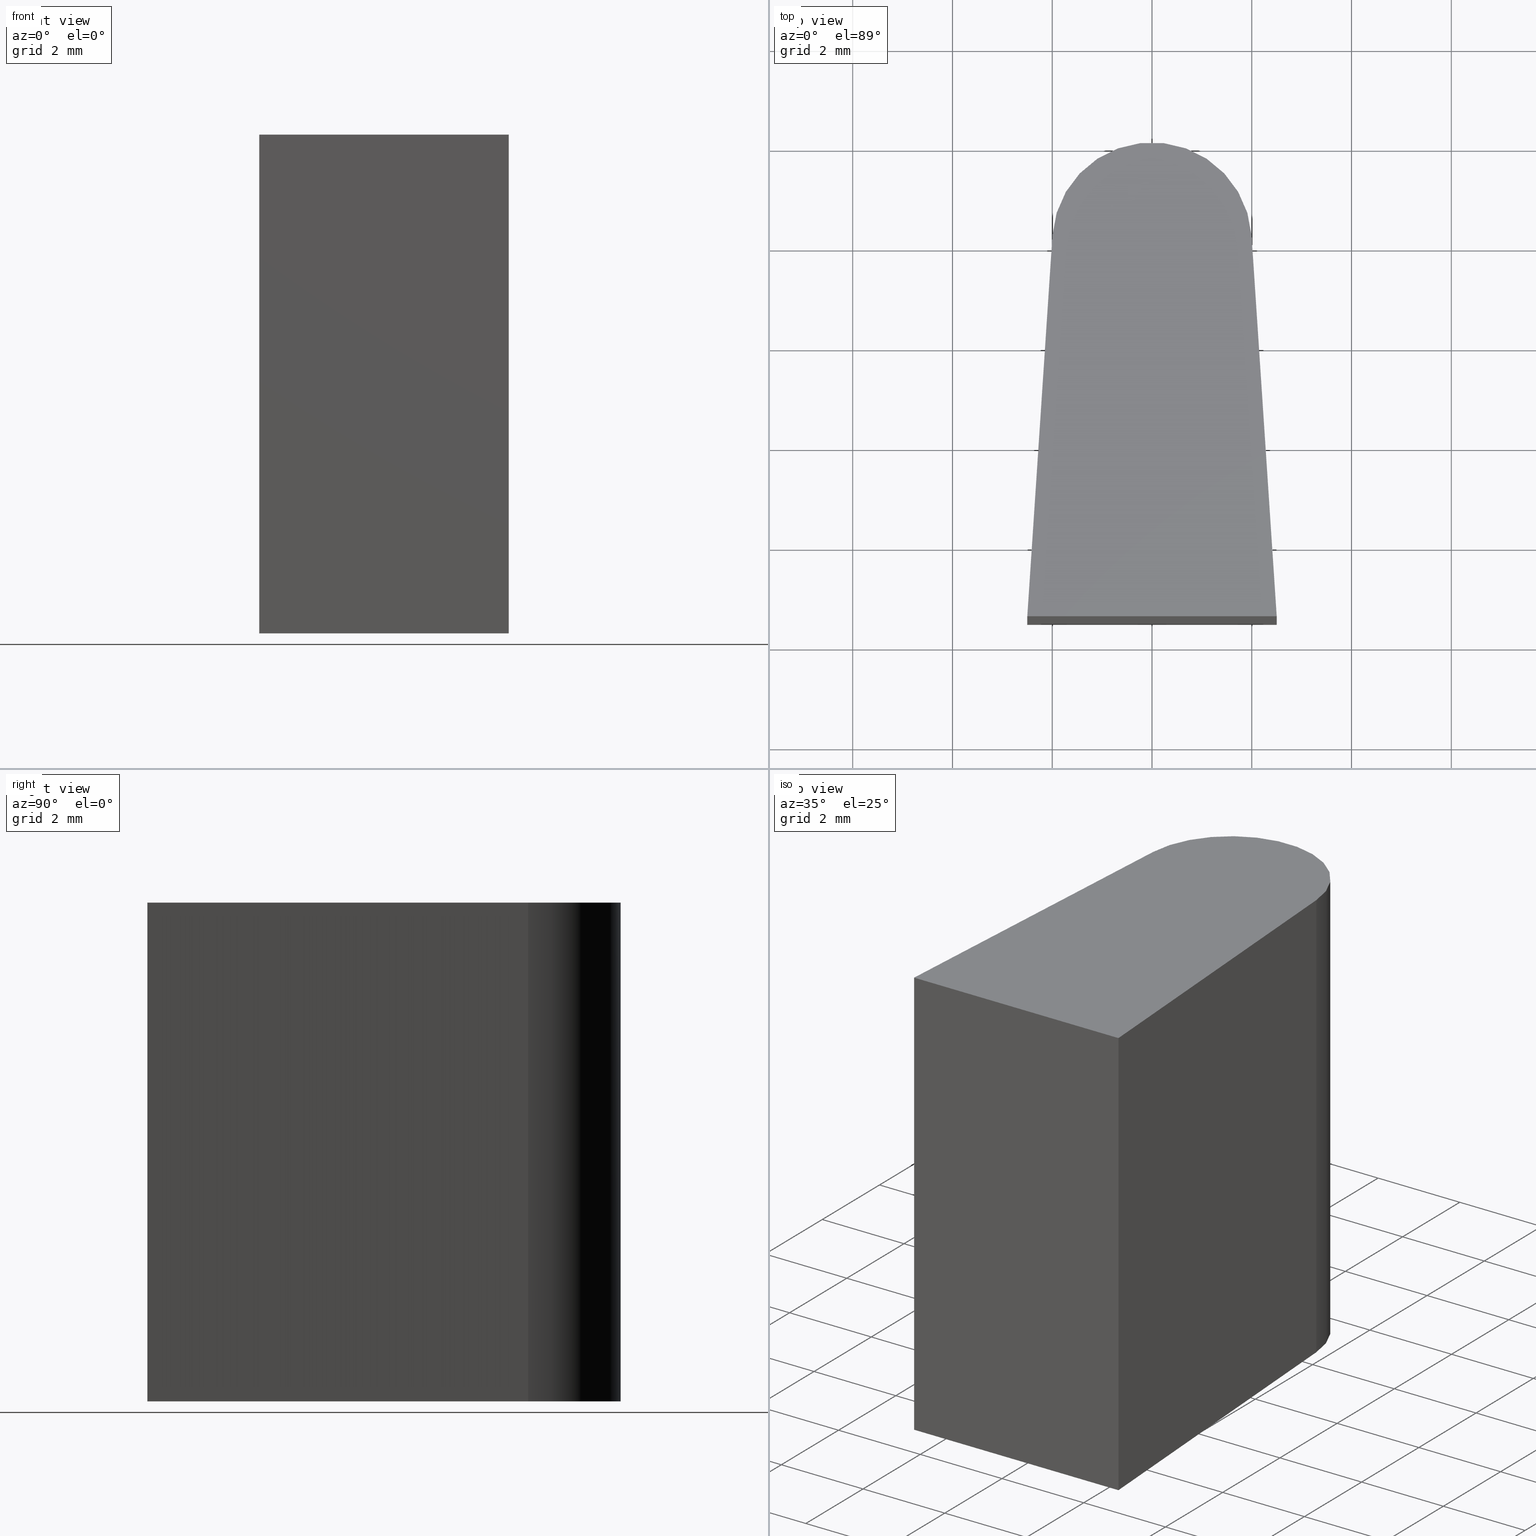
[diagram: canonical four-view strip — front | top / right | iso, engineering-drawing reading convention]
A machine part, canonical four-view strip (front | top / right | iso — engineering-drawing reading convention). The complete STEP part file that produces these views, byte-faithful:
ISO-10303-21;
HEADER;
/* Generated by software containing ST-Developer
 * from STEP Tools, Inc. (www.steptools.com) 
 */

FILE_DESCRIPTION(
/* description */ (''),
/* implementation_level */ '2;1');

FILE_NAME(
/* name */ 
'H:\\Eigene Dateien\\CAD Workspace Vault\\CAD\\E_3_Nocken\\E_3_01_Aufs
chwei\X\DFnocke\\01_Rund\\E_3_01_01_01_00_WKZ-0178.stp',
/* time_stamp */ '2024-05-16T11:16:44+02:00',
/* author */ ('dfischer'),
/* organization */ (''),
/* preprocessor_version */ 'ST-DEVELOPER v18.1',
/* originating_system */ 'Autodesk Inventor 2021',
/* authorisation */ '');

FILE_SCHEMA (('AUTOMOTIVE_DESIGN { 1 0 10303 214 3 1 1 }'));
ENDSEC;

DATA;
#10=MECHANICAL_DESIGN_GEOMETRIC_PRESENTATION_REPRESENTATION('',(#17,#18),
#192);
#11=SHAPE_REPRESENTATION_RELATIONSHIP('SRR','None',#199,#12);
#12=ADVANCED_BREP_SHAPE_REPRESENTATION('',(#13),#191);
#13=MANIFOLD_SOLID_BREP('Volumenk\X\F6rper1',#106);
#14=CIRCLE('',#130,2.);
#15=CIRCLE('',#131,2.);
#16=CYLINDRICAL_SURFACE('',#129,2.);
#17=STYLED_ITEM('',(#209),#101);
#18=STYLED_ITEM('',(#208),#13);
#19=FACE_OUTER_BOUND('',#25,.T.);
#20=FACE_OUTER_BOUND('',#26,.T.);
#21=FACE_OUTER_BOUND('',#27,.T.);
#22=FACE_OUTER_BOUND('',#28,.T.);
#23=FACE_OUTER_BOUND('',#29,.T.);
#24=FACE_OUTER_BOUND('',#30,.T.);
#25=EDGE_LOOP('',(#71,#72,#73,#74));
#26=EDGE_LOOP('',(#75,#76,#77,#78));
#27=EDGE_LOOP('',(#79,#80,#81,#82));
#28=EDGE_LOOP('',(#83,#84,#85,#86));
#29=EDGE_LOOP('',(#87,#88,#89,#90));
#30=EDGE_LOOP('',(#91,#92,#93,#94));
#31=LINE('',#166,#41);
#32=LINE('',#168,#42);
#33=LINE('',#170,#43);
#34=LINE('',#171,#44);
#35=LINE('',#174,#45);
#36=LINE('',#176,#46);
#37=LINE('',#177,#47);
#38=LINE('',#180,#48);
#39=LINE('',#182,#49);
#40=LINE('',#183,#50);
#41=VECTOR('',#138,10.);
#42=VECTOR('',#139,10.);
#43=VECTOR('',#140,10.);
#44=VECTOR('',#141,10.);
#45=VECTOR('',#144,10.);
#46=VECTOR('',#145,10.);
#47=VECTOR('',#146,10.);
#48=VECTOR('',#149,10.);
#49=VECTOR('',#150,10.);
#50=VECTOR('',#151,10.);
#51=VERTEX_POINT('',#164);
#52=VERTEX_POINT('',#165);
#53=VERTEX_POINT('',#167);
#54=VERTEX_POINT('',#169);
#55=VERTEX_POINT('',#173);
#56=VERTEX_POINT('',#175);
#57=VERTEX_POINT('',#179);
#58=VERTEX_POINT('',#181);
#59=EDGE_CURVE('',#51,#52,#31,.T.);
#60=EDGE_CURVE('',#53,#52,#32,.T.);
#61=EDGE_CURVE('',#53,#54,#33,.T.);
#62=EDGE_CURVE('',#54,#51,#34,.T.);
#63=EDGE_CURVE('',#52,#55,#35,.T.);
#64=EDGE_CURVE('',#56,#55,#36,.T.);
#65=EDGE_CURVE('',#56,#53,#37,.T.);
#66=EDGE_CURVE('',#55,#57,#38,.T.);
#67=EDGE_CURVE('',#58,#57,#39,.T.);
#68=EDGE_CURVE('',#58,#56,#40,.T.);
#69=EDGE_CURVE('',#54,#58,#14,.T.);
#70=EDGE_CURVE('',#57,#51,#15,.T.);
#71=ORIENTED_EDGE('',*,*,#59,.T.);
#72=ORIENTED_EDGE('',*,*,#60,.F.);
#73=ORIENTED_EDGE('',*,*,#61,.T.);
#74=ORIENTED_EDGE('',*,*,#62,.T.);
#75=ORIENTED_EDGE('',*,*,#63,.T.);
#76=ORIENTED_EDGE('',*,*,#64,.F.);
#77=ORIENTED_EDGE('',*,*,#65,.T.);
#78=ORIENTED_EDGE('',*,*,#60,.T.);
#79=ORIENTED_EDGE('',*,*,#66,.T.);
#80=ORIENTED_EDGE('',*,*,#67,.F.);
#81=ORIENTED_EDGE('',*,*,#68,.T.);
#82=ORIENTED_EDGE('',*,*,#64,.T.);
#83=ORIENTED_EDGE('',*,*,#62,.F.);
#84=ORIENTED_EDGE('',*,*,#69,.T.);
#85=ORIENTED_EDGE('',*,*,#67,.T.);
#86=ORIENTED_EDGE('',*,*,#70,.T.);
#87=ORIENTED_EDGE('',*,*,#61,.F.);
#88=ORIENTED_EDGE('',*,*,#65,.F.);
#89=ORIENTED_EDGE('',*,*,#68,.F.);
#90=ORIENTED_EDGE('',*,*,#69,.F.);
#91=ORIENTED_EDGE('',*,*,#66,.F.);
#92=ORIENTED_EDGE('',*,*,#63,.F.);
#93=ORIENTED_EDGE('',*,*,#59,.F.);
#94=ORIENTED_EDGE('',*,*,#70,.F.);
#95=PLANE('',#126);
#96=PLANE('',#127);
#97=PLANE('',#128);
#98=PLANE('',#132);
#99=PLANE('',#133);
#100=ADVANCED_FACE('',(#19),#95,.T.);
#101=ADVANCED_FACE('',(#20),#96,.T.);
#102=ADVANCED_FACE('',(#21),#97,.T.);
#103=ADVANCED_FACE('',(#22),#16,.T.);
#104=ADVANCED_FACE('',(#23),#98,.F.);
#105=ADVANCED_FACE('',(#24),#99,.T.);
#106=CLOSED_SHELL('',(#100,#101,#102,#103,#104,#105));
#107=DERIVED_UNIT_ELEMENT(#109,1.);
#108=DERIVED_UNIT_ELEMENT(#194,3.);
#109=(
MASS_UNIT()
NAMED_UNIT(*)
SI_UNIT($,.GRAM.)
);
#110=DERIVED_UNIT((#107,#108));
#111=MEASURE_REPRESENTATION_ITEM('density measure',
POSITIVE_RATIO_MEASURE(8.03),#110);
#112=PROPERTY_DEFINITION_REPRESENTATION(#117,#114);
#113=PROPERTY_DEFINITION_REPRESENTATION(#118,#115);
#114=REPRESENTATION('material name',(#116),#191);
#115=REPRESENTATION('density',(#111),#191);
#116=DESCRIPTIVE_REPRESENTATION_ITEM('1.4301','1.4301');
#117=PROPERTY_DEFINITION('material property','material name',#201);
#118=PROPERTY_DEFINITION('material property','density of part',#201);
#119=DATE_TIME_ROLE('creation_date');
#120=APPLIED_DATE_AND_TIME_ASSIGNMENT(#121,#119,(#201));
#121=DATE_AND_TIME(#122,#123);
#122=CALENDAR_DATE(2011,19,10);
#123=LOCAL_TIME(0,0,0.,#124);
#124=COORDINATED_UNIVERSAL_TIME_OFFSET(0,0,.BEHIND.);
#125=AXIS2_PLACEMENT_3D('placement',#162,#134,#135);
#126=AXIS2_PLACEMENT_3D('',#163,#136,#137);
#127=AXIS2_PLACEMENT_3D('',#172,#142,#143);
#128=AXIS2_PLACEMENT_3D('',#178,#147,#148);
#129=AXIS2_PLACEMENT_3D('',#184,#152,#153);
#130=AXIS2_PLACEMENT_3D('',#185,#154,#155);
#131=AXIS2_PLACEMENT_3D('',#186,#156,#157);
#132=AXIS2_PLACEMENT_3D('',#187,#158,#159);
#133=AXIS2_PLACEMENT_3D('',#188,#160,#161);
#134=DIRECTION('axis',(0.,0.,1.));
#135=DIRECTION('refdir',(1.,0.,0.));
#136=DIRECTION('center_axis',(0.997823512446701,0.0659411708155671,0.));
#137=DIRECTION('ref_axis',(0.,0.,-1.));
#138=DIRECTION('',(0.0659411708155671,-0.997823512446701,0.));
#139=DIRECTION('',(0.,0.,1.));
#140=DIRECTION('',(-0.0659411708155671,0.997823512446701,0.));
#141=DIRECTION('',(0.,0.,1.));
#142=DIRECTION('center_axis',(0.,-1.,0.));
#143=DIRECTION('ref_axis',(0.,0.,-1.));
#144=DIRECTION('',(-1.,0.,0.));
#145=DIRECTION('',(0.,0.,1.));
#146=DIRECTION('',(1.,0.,0.));
#147=DIRECTION('center_axis',(-0.997823512446701,0.0659411708155671,0.));
#148=DIRECTION('ref_axis',(0.,0.,1.));
#149=DIRECTION('',(0.0659411708155671,0.997823512446701,0.));
#150=DIRECTION('',(0.,0.,1.));
#151=DIRECTION('',(-0.0659411708155671,-0.997823512446701,0.));
#152=DIRECTION('center_axis',(0.,0.,1.));
#153=DIRECTION('ref_axis',(1.,0.,0.));
#154=DIRECTION('center_axis',(0.,0.,1.));
#155=DIRECTION('ref_axis',(1.,0.,0.));
#156=DIRECTION('center_axis',(0.,0.,-1.));
#157=DIRECTION('ref_axis',(1.,0.,0.));
#158=DIRECTION('center_axis',(0.,0.,1.));
#159=DIRECTION('ref_axis',(1.,0.,0.));
#160=DIRECTION('center_axis',(0.,0.,1.));
#161=DIRECTION('ref_axis',(1.,0.,0.));
#162=CARTESIAN_POINT('',(0.,0.,0.));
#163=CARTESIAN_POINT('Origin',(1.9956470248934,0.131882341631134,0.));
#164=CARTESIAN_POINT('',(1.9956470248934,0.131882341631134,5.));
#165=CARTESIAN_POINT('',(2.5,-7.5,5.));
#166=CARTESIAN_POINT('',(2.5,-7.5,5.));
#167=CARTESIAN_POINT('',(2.5,-7.5,-5.));
#168=CARTESIAN_POINT('',(2.5,-7.5,0.));
#169=CARTESIAN_POINT('',(1.9956470248934,0.131882341631134,-5.));
#170=CARTESIAN_POINT('',(2.5,-7.5,-5.));
#171=CARTESIAN_POINT('',(1.9956470248934,0.131882341631134,0.));
#172=CARTESIAN_POINT('Origin',(2.5,-7.5,0.));
#173=CARTESIAN_POINT('',(-2.5,-7.5,5.));
#174=CARTESIAN_POINT('',(-2.5,-7.5,5.));
#175=CARTESIAN_POINT('',(-2.5,-7.5,-5.));
#176=CARTESIAN_POINT('',(-2.5,-7.5,0.));
#177=CARTESIAN_POINT('',(-2.5,-7.5,-5.));
#178=CARTESIAN_POINT('Origin',(-2.5,-7.5,0.));
#179=CARTESIAN_POINT('',(-1.9956470248934,0.131882341631129,5.));
#180=CARTESIAN_POINT('',(-1.9956470248934,0.131882341631129,5.));
#181=CARTESIAN_POINT('',(-1.9956470248934,0.131882341631129,-5.));
#182=CARTESIAN_POINT('',(-1.9956470248934,0.131882341631134,0.));
#183=CARTESIAN_POINT('',(-1.9956470248934,0.131882341631129,-5.));
#184=CARTESIAN_POINT('Origin',(0.,0.,0.));
#185=CARTESIAN_POINT('Origin',(0.,0.,-5.));
#186=CARTESIAN_POINT('Origin',(0.,0.,5.));
#187=CARTESIAN_POINT('Origin',(1.73472347597681E-16,0.709081540761135,-5.));
#188=CARTESIAN_POINT('Origin',(1.73472347597681E-16,0.709081540761135,5.));
#189=UNCERTAINTY_MEASURE_WITH_UNIT(LENGTH_MEASURE(0.01),#193,
'DISTANCE_ACCURACY_VALUE',
'Maximum model space distance between geometric entities at asserted c
onnectivities');
#190=UNCERTAINTY_MEASURE_WITH_UNIT(LENGTH_MEASURE(0.01),#193,
'DISTANCE_ACCURACY_VALUE',
'Maximum model space distance between geometric entities at asserted c
onnectivities');
#191=(
GEOMETRIC_REPRESENTATION_CONTEXT(3)
GLOBAL_UNCERTAINTY_ASSIGNED_CONTEXT((#189))
GLOBAL_UNIT_ASSIGNED_CONTEXT((#193,#195,#196))
REPRESENTATION_CONTEXT('','3D')
);
#192=(
GEOMETRIC_REPRESENTATION_CONTEXT(3)
GLOBAL_UNCERTAINTY_ASSIGNED_CONTEXT((#190))
GLOBAL_UNIT_ASSIGNED_CONTEXT((#193,#195,#196))
REPRESENTATION_CONTEXT('','3D')
);
#193=(
LENGTH_UNIT()
NAMED_UNIT(*)
SI_UNIT(.MILLI.,.METRE.)
);
#194=(
LENGTH_UNIT()
NAMED_UNIT(*)
SI_UNIT(.CENTI.,.METRE.)
);
#195=(
NAMED_UNIT(*)
PLANE_ANGLE_UNIT()
SI_UNIT($,.RADIAN.)
);
#196=(
NAMED_UNIT(*)
SI_UNIT($,.STERADIAN.)
SOLID_ANGLE_UNIT()
);
#197=SHAPE_DEFINITION_REPRESENTATION(#198,#199);
#198=PRODUCT_DEFINITION_SHAPE('',$,#201);
#199=SHAPE_REPRESENTATION('',(#125),#191);
#200=PRODUCT_DEFINITION_CONTEXT('part definition',#205,'design');
#201=PRODUCT_DEFINITION('WKZ-0178','E_3_01_01_01_00_WKZ-0178',#202,#200);
#202=PRODUCT_DEFINITION_FORMATION('',$,#207);
#203=PRODUCT_RELATED_PRODUCT_CATEGORY('E_3_01_01_01_00_WKZ-0178',
'E_3_01_01_01_00_WKZ-0178',(#207));
#204=APPLICATION_PROTOCOL_DEFINITION('international standard',
'automotive_design',2009,#205);
#205=APPLICATION_CONTEXT(
'Core Data for Automotive Mechanical Design Process');
#206=PRODUCT_CONTEXT('part definition',#205,'mechanical');
#207=PRODUCT('WKZ-0178','E_3_01_01_01_00_WKZ-0178',$,(#206));
#208=PRESENTATION_STYLE_ASSIGNMENT((#210));
#209=PRESENTATION_STYLE_ASSIGNMENT((#211));
#210=SURFACE_STYLE_USAGE(.BOTH.,#214);
#211=SURFACE_STYLE_USAGE(.BOTH.,#215);
#212=SURFACE_STYLE_RENDERING_WITH_PROPERTIES($,#222,(#213));
#213=SURFACE_STYLE_TRANSPARENT(0.);
#214=SURFACE_SIDE_STYLE('',(#216,#212));
#215=SURFACE_SIDE_STYLE('',(#217));
#216=SURFACE_STYLE_FILL_AREA(#218);
#217=SURFACE_STYLE_FILL_AREA(#219);
#218=FILL_AREA_STYLE('',(#220));
#219=FILL_AREA_STYLE('',(#221));
#220=FILL_AREA_STYLE_COLOUR('',#222);
#221=FILL_AREA_STYLE_COLOUR('',#223);
#222=COLOUR_RGB('',1.,1.,1.);
#223=COLOUR_RGB('',0.325490196078431,0.325490196078431,0.325490196078431);
ENDSEC;
END-ISO-10303-21;
